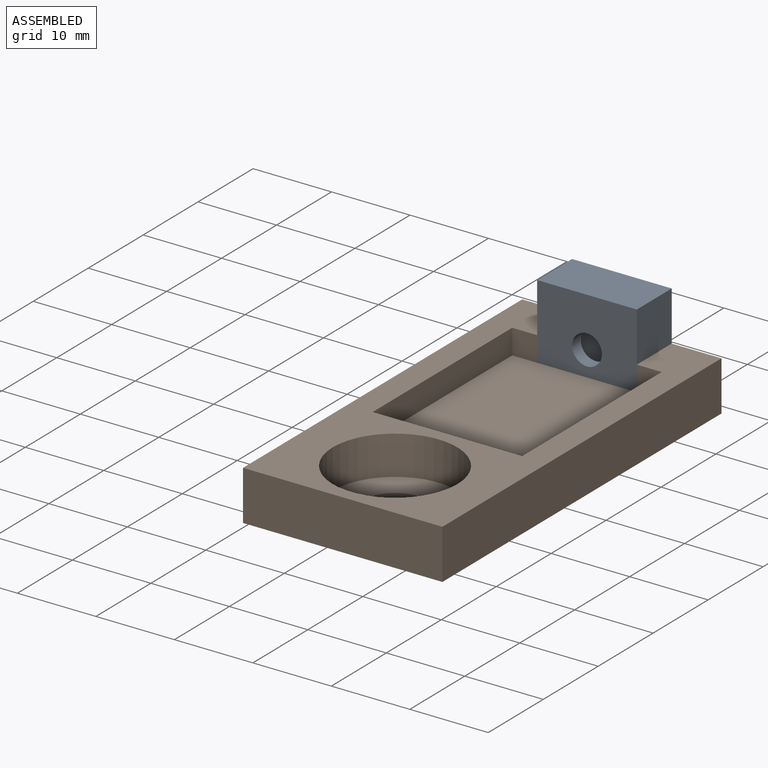
[diagram: assembled view]
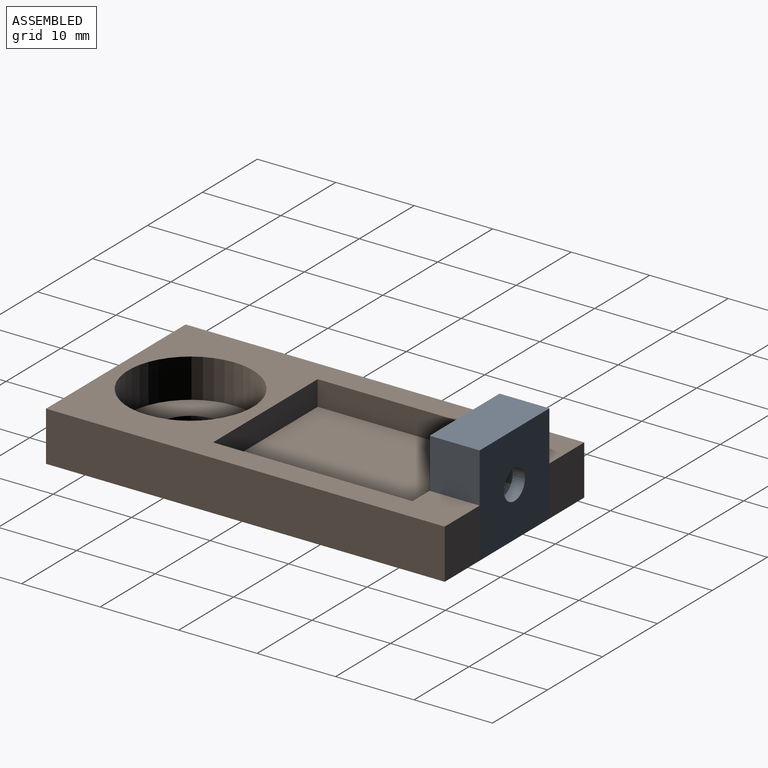
[diagram: assembled view, second angle]
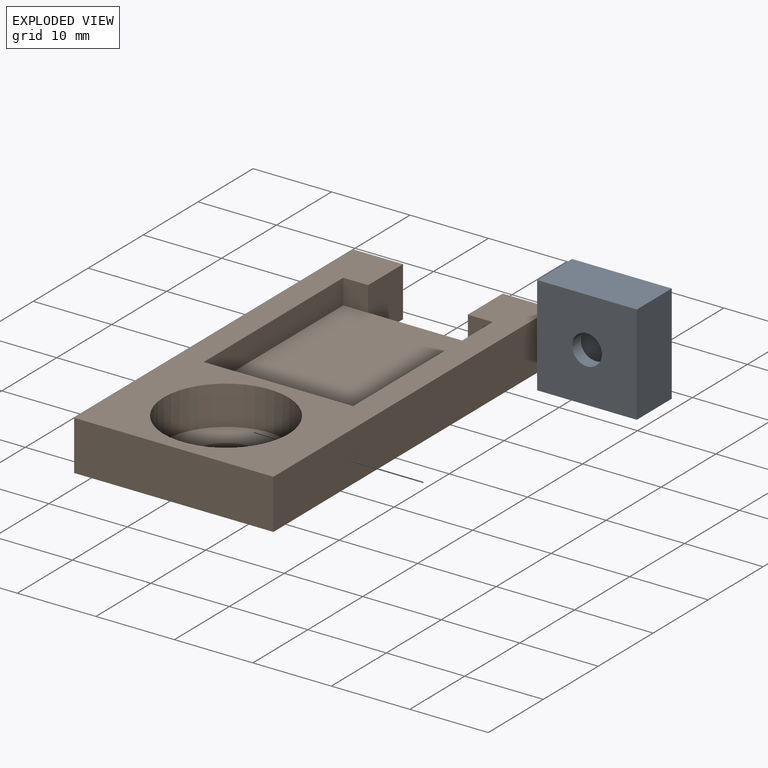
[diagram: exploded view]
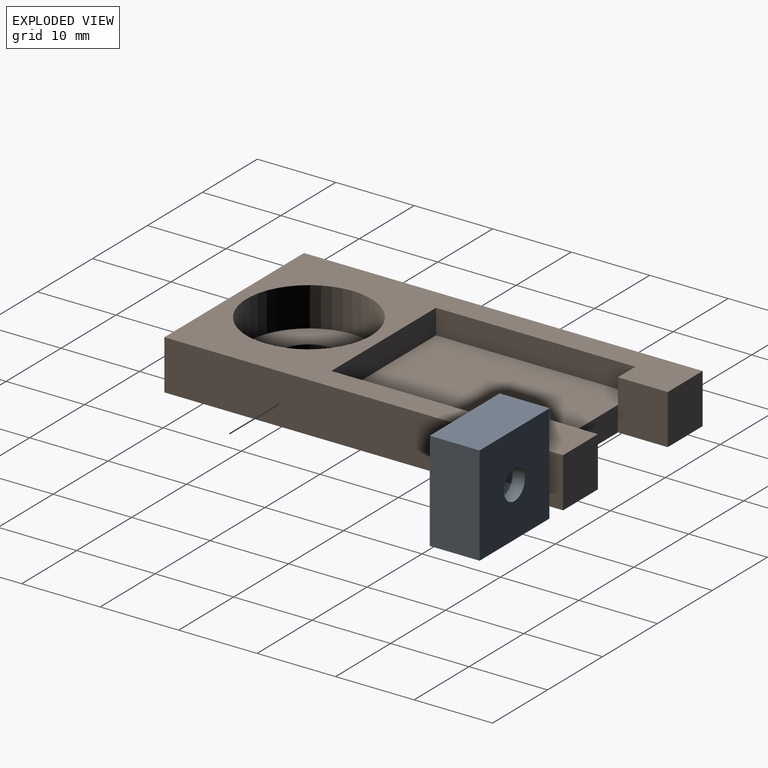
[diagram: exploded view, second angle]
ASSEMBLY  parts=2 mates=2
PART A: 16 faces, bbox 12.7x6.4x12.7 mm
  f0: plane 12.7x6.35mm, normal (0,0,-1), area 80.6mm2, adj f1,f9,f14,f15
  f1: plane 12.7x6.35mm, normal (1,0,0), area 80.6mm2, adj f0,f2,f14,f15
  f2: plane 12.7x6.35mm, normal (0,0,1), area 80.6mm2, adj f1,f9,f14,f15
  f3: plane 3.18x2.75mm, normal (-1,0,0), area 8.7mm2, adj f4,f8,f10,f12
  f4: plane 5.5x3.18mm, normal (-1,0,0), area 17.5mm2, adj f3,f5,f10,f12
  f5: plane 4.76x3.18mm, normal (-0.5,0,0.87), area 17.5mm2, adj f4,f6,f10,f12
  f6: plane 4.76x3.18mm, normal (0.5,0,0.87), area 17.5mm2, adj f5,f7,f10,f12
  f7: plane 8.25x3.18mm, normal (1,0,0), area 26.2mm2, adj f6,f8,f10,f12
  f8: plane 9.53x3.18mm, normal (0,0,-1), area 30.2mm2, adj f3,f7,f10,f12
  f9: plane 12.7x6.35mm, normal (-1,0,0), area 80.6mm2, adj f0,f2,f14,f15
  f10: plane 11x9.53mm, normal (0,-1,0), area 80.2mm2, adj f3,f4,f5,f6,f7,f8,f11
  f11: cylinder r=1.91mm len=3.81mm, axis (0,1,0), area 19mm2, adj f10,f15
  f12: plane 11x9.53mm, normal (0,1,0), area 80.2mm2, adj f3,f4,f5,f6,f7,f8,f13
  f13: cylinder r=1.91mm len=3.81mm, axis (0,-1,0), area 19mm2, adj f12,f14
  f14: plane 12.7x12.7mm, normal (0,-1,0), area 149.9mm2, adj f0,f1,f2,f9,f13
  f15: plane 12.7x12.7mm, normal (0,1,0), area 149.9mm2, adj f0,f1,f2,f9,f11
PART B: 19 faces, bbox 25.4x50.8x6.4 mm
  f0: plane 6.35x6.35mm, normal (0,1,0), area 40.3mm2, adj f1,f3,f8,f15
  f1: plane 50.8x25.4mm, normal (0,0,1), area 527.9mm2, adj f0,f2,f4,f5,f6,f7,f8,f10
  f2: plane 3.18x3.18mm, normal (0,-1,0), area 10.1mm2, adj f1,f13,f14,f15
  f3: plane 50.8x25.4mm, normal (0,0,-1), area 1160.2mm2, adj f0,f4,f5,f6,f8,f15,f16,f17
  f4: plane 6.35x6.35mm, normal (0,1,0), area 40.3mm2, adj f1,f3,f5,f16
  f5: plane 50.8x6.35mm, normal (-1,0,0), area 322.6mm2, adj f1,f3,f4,f6
  f6: plane 25.4x6.35mm, normal (0,-1,0), area 161.3mm2, adj f1,f3,f5,f8
  f7: cylinder r=7.94mm len=15.88mm, axis (0,0,-1), area 248.3mm2, adj f1,f9
  f8: plane 50.8x6.35mm, normal (1,0,0), area 322.6mm2, adj f0,f1,f3,f6
  f9: plane 15.88x15.88mm, normal (0,0,1), area 148.4mm2, adj f7,f18
  f10: plane 3.18x3.18mm, normal (0,-1,0), area 10.1mm2, adj f1,f11,f14,f16
  f11: plane 25.4x3.18mm, normal (1,0,0), area 80.6mm2, adj f1,f10,f12,f14
  f12: plane 19.05x3.18mm, normal (0,1,0), area 60.5mm2, adj f1,f11,f13,f14
  f13: plane 25.4x3.18mm, normal (-1,0,0), area 80.6mm2, adj f1,f2,f12,f14
  f14: plane 25.4x19.05mm, normal (0,0,1), area 483.9mm2, adj f2,f10,f11,f12,f13,f17
  f15: plane 6.35x6.35mm, normal (-1,0,0), area 40.3mm2, adj f0,f1,f2,f3,f17
  f16: plane 6.35x6.35mm, normal (1,0,0), area 40.3mm2, adj f1,f3,f4,f10,f17
  f17: plane 12.7x3.18mm, normal (0,1,0), area 40.3mm2, adj f3,f14,f15,f16
  f18: cylinder r=3.97mm len=7.94mm, axis (0,0,1), area 34.2mm2, adj f3,f9
PLACE A t=(6.77,5.39,-4.18)mm
PLACE B t=(0.42,6.98,-15.51)mm
MATE fastened A.f9 <-> B.f16  axis (-1,0,0) through (6.77,3.8,-16.88)mm
MATE planar B.f3 <-> A.f0  axis (0,0,-1) through (13.12,0.63,-16.88)mm
